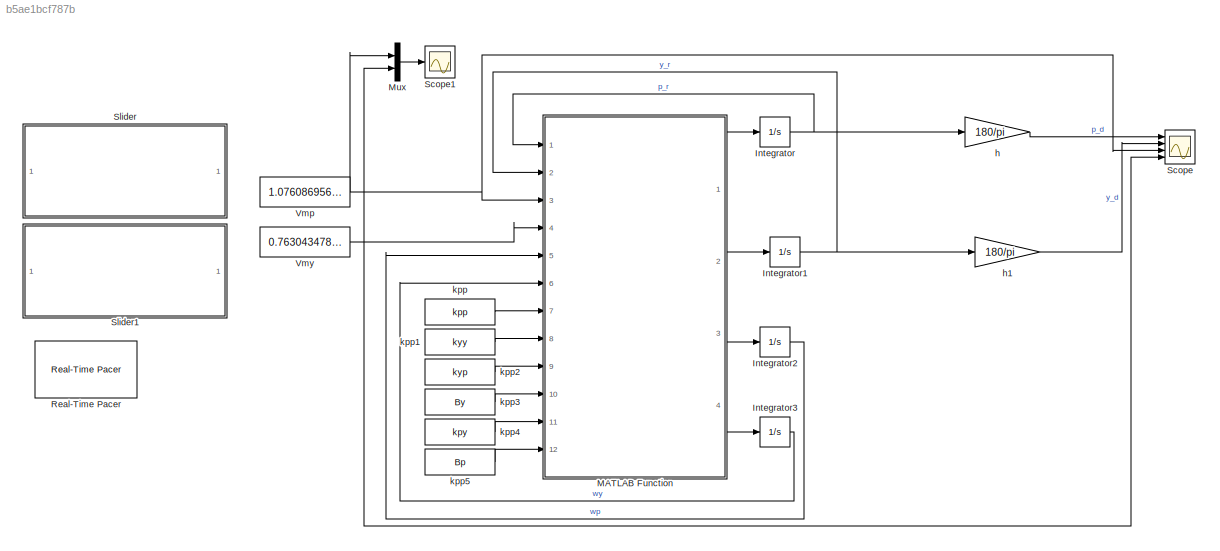
MODEL slx_b5ae1bcf787b
KIND model
CONFIG AbsTol = auto
CONFIG EnableMultiTasking = off
CONFIG FixedStep = 0.2
CONFIG MaxStep = auto
CONFIG MinStep = auto
CONFIG RelTol = 1e-3
CONFIG SampleTimeConstraint = Unconstrained
CONFIG Solver = ode4
CONFIG SolverName = ode4
CONFIG StartTime = 0.0
CONFIG StopTime = inf
BLOCK [Integrator] Integrator
  InitialCondition = d2r(-31.0537918783631)
  LimitOutput = on
  LowerSaturationLimit = -pi/4
  Ports = [1, 1]
  UpperSaturationLimit = pi/4
BLOCK [Integrator] Integrator1
  InitialCondition = d2r(120.519928781055)
  LimitOutput = on
  LowerSaturationLimit = 0
  Ports = [1, 1]
  UpperSaturationLimit = pi
BLOCK [Integrator] Integrator2
  LowerSaturationLimit = -1
  Ports = [1, 1]
  UpperSaturationLimit = 1
BLOCK [Integrator] Integrator3
  Ports = [1, 1]
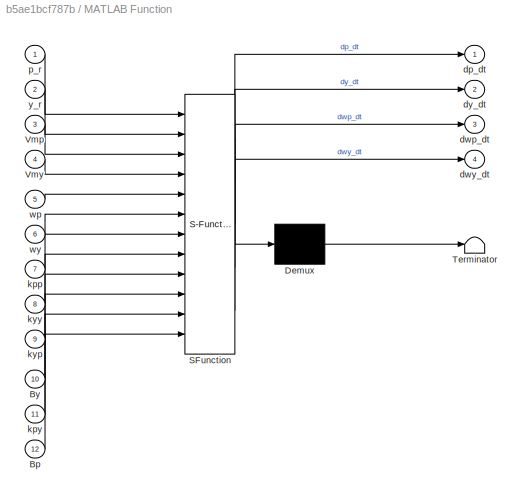
BLOCK [SubSystem] MATLAB Function
  ErrorFcn = Stateflow.Translate.translate
  PermitHierarchicalResolution = ExplicitOnly
  Ports = [12, 4]
  RequestExecContextInheritance = off
  SFBlockType = MATLAB Function
  TreatAsAtomicUnit = on
BLOCK [Demux] MATLAB Function/ Demux 
  Outputs = 1
  Ports = [1, 1]
BLOCK [S-Function] MATLAB Function/ SFunction 
  EnableBusSupport = on
  FunctionName = sf_sfun
  Parameters = g,jeqp,jeqy,lcm,mheli
  PortCounts = [12 5]
  Ports = [12, 5]
  SFcnIsStateOwnerBlock = off
  SFunctionDeploymentMode = off
  Tag = Stateflow S-Function Helicopter_Non_linear_Original 2
BLOCK [Terminator] MATLAB Function/ Terminator 
BLOCK [Inport] MATLAB Function/Bp
  IconDisplay = Port number
  Port = 12
BLOCK [Inport] MATLAB Function/By
  IconDisplay = Port number
  Port = 10
BLOCK [Inport] MATLAB Function/Vmp
  IconDisplay = Port number
  Port = 3
BLOCK [Inport] MATLAB Function/Vmy
  IconDisplay = Port number
  Port = 4
BLOCK [Outport] MATLAB Function/dp_dt
  IconDisplay = Port number
BLOCK [Outport] MATLAB Function/dwp_dt
  IconDisplay = Port number
  Port = 3
BLOCK [Outport] MATLAB Function/dwy_dt
  IconDisplay = Port number
  Port = 4
BLOCK [Outport] MATLAB Function/dy_dt
  IconDisplay = Port number
  Port = 2
BLOCK [Inport] MATLAB Function/kpp
  IconDisplay = Port number
  Port = 7
BLOCK [Inport] MATLAB Function/kpy
  IconDisplay = Port number
  Port = 11
BLOCK [Inport] MATLAB Function/kyp
  IconDisplay = Port number
  Port = 9
BLOCK [Inport] MATLAB Function/kyy
  IconDisplay = Port number
  Port = 8
BLOCK [Inport] MATLAB Function/p_r
  IconDisplay = Port number
BLOCK [Inport] MATLAB Function/wp
  IconDisplay = Port number
  Port = 5
BLOCK [Inport] MATLAB Function/wy
  IconDisplay = Port number
  Port = 6
BLOCK [Inport] MATLAB Function/y_r
  IconDisplay = Port number
  Port = 2
BLOCK [Mux] Mux
  DisplayOption = bar
  Inputs = 2
  Ports = [2, 1]
BLOCK [Reference] Real-Time Pacer  REF=realtime_pacer_lib/Real-Time Pacer
  Ports = []
  SourceBlock = realtime_pacer_lib/Real-Time Pacer
  SourceType = RealTime_Pacer
BLOCK [Scope] Scope
  Floating = off
  NumInputPorts = 4
  Ports = [4]
  ScopeSpecificationString = Simulink.scopes.TimeScopeBlockCfg('CurrentConfiguration', extmgr.ConfigurationSet(extmgr.Configuration('Core','General UI',true,'FigureColor',[1 1 1]),extmgr.Configuration('Core','Source UI',true),extmgr.Configuration('Sources','WiredSimulink',true,'SampleTime','0.2'),extmgr.Configuration('Visuals','Time Domain',true,'SerializedDisplays',{struct('MinYLimReal','-50.00000','MaxYLimReal','50.00000','...<+3675ch>
BLOCK [Scope] Scope1
  Floating = off
  NumInputPorts = 1
  Ports = [1]
  ScopeSpecificationString = Simulink.scopes.TimeScopeBlockCfg('CurrentConfiguration', extmgr.ConfigurationSet(extmgr.Configuration('Core','General UI',true,'FigureColor',[1 1 1]),extmgr.Configuration('Core','Source UI',true),extmgr.Configuration('Sources','WiredSimulink',true,'DataLoggingVariableName','ScopeData1'),extmgr.Configuration('Visuals','Time Domain',true,'SerializedDisplays',{struct('MinYLimReal','0','MaxYLimReal',...<+1714ch>
BLOCK [SubSystem] Slider
  DialogController = hmiCreateDDGDialog
  IsWebBlock = on
  MaskHideContents = on
  Ports = []
  RequestExecContextInheritance = off
BLOCK [SubSystem] Slider1
  DialogController = hmiCreateDDGDialog
  IsWebBlock = on
  MaskHideContents = on
  Ports = []
  RequestExecContextInheritance = off
BLOCK [Constant] Vmp
  Value = 1.0760869565217
BLOCK [Constant] Vmy
  Value = 0.7630434782609
BLOCK [Gain] h
  Gain = 180/pi
  OutDataTypeStr = Inherit: Inherit via internal rule
  ParamDataTypeStr = Inherit: Inherit via internal rule
  SaturateOnIntegerOverflow = off
BLOCK [Gain] h1
  Gain = 180/pi
  OutDataTypeStr = Inherit: Inherit via internal rule
  ParamDataTypeStr = Inherit: Inherit via internal rule
  SaturateOnIntegerOverflow = off
BLOCK [Constant] kpp
  Value = kpp
BLOCK [Constant] kpp1
  Value = kyy
BLOCK [Constant] kpp2
  Value = kyp
BLOCK [Constant] kpp3
  Value = By
BLOCK [Constant] kpp4
  Value = kpy
BLOCK [Constant] kpp5
  Value = Bp
NET Integrator1:1 -> MATLAB Function:2, h1:1
LINE Integrator2:1 -> MATLAB Function:5
LINE Integrator3:1 -> MATLAB Function:6
NET Integrator:1 -> MATLAB Function:1, h:1
LINE MATLAB Function:1 -> Integrator:1
LINE MATLAB Function:2 -> Integrator1:1
LINE MATLAB Function:3 -> Integrator2:1
LINE MATLAB Function:4 -> Integrator3:1
LINE Mux:1 -> Scope1:1
NET Vmp:1 -> MATLAB Function:3, Mux:1, Scope:3
NET Vmy:1 -> MATLAB Function:4, Mux:2, Scope:4
LINE h1:1 -> Scope:2
LINE h:1 -> Scope:1
LINE kpp1:1 -> MATLAB Function:8
LINE kpp2:1 -> MATLAB Function:9
LINE kpp3:1 -> MATLAB Function:10
LINE kpp4:1 -> MATLAB Function:11
LINE kpp5:1 -> MATLAB Function:12
LINE kpp:1 -> MATLAB Function:7
note: NET lines group one-source signal fan-out (src -> all destinations, sorted); 1:1 wires keep LINE
CHART MATLAB Function states=1 transitions=1
  STATE_LABEL 'eML_blk_kernel()'
  STATE_LABEL 'SCRIPT:\nfunction [dp_dt, dy_dt, dwp_dt, dwy_dt]= fcn(p_r,y_r,Vmp, Vmy,wp,wy, lcm, mheli, jeqp, jeqy, g, kpp, kyy, kyp, By, kpy, Bp)\n\n  %%Parameters\n%   \n%   Bp,\n%   By,\n%   g,\n%   kpp,\n%   kyp,\n%   kyy,\n%   kpy,\n%   mheli,\n%   lcm,\n%   jeqp,\n%   jeqy,\n  \n\n%%\n   dp_dt = wp;\n   dy_dt = wy;\n   \n   %%\n   dwp_dt_n1 = (kpp*Vmp);\n   dwp_dt_n2 = (kpy*Vmy);\n   dwp_dt_n3 = (Bp*wp+ (mheli*(wy.^2)*sin(p_r)*(l...<+419ch>'
